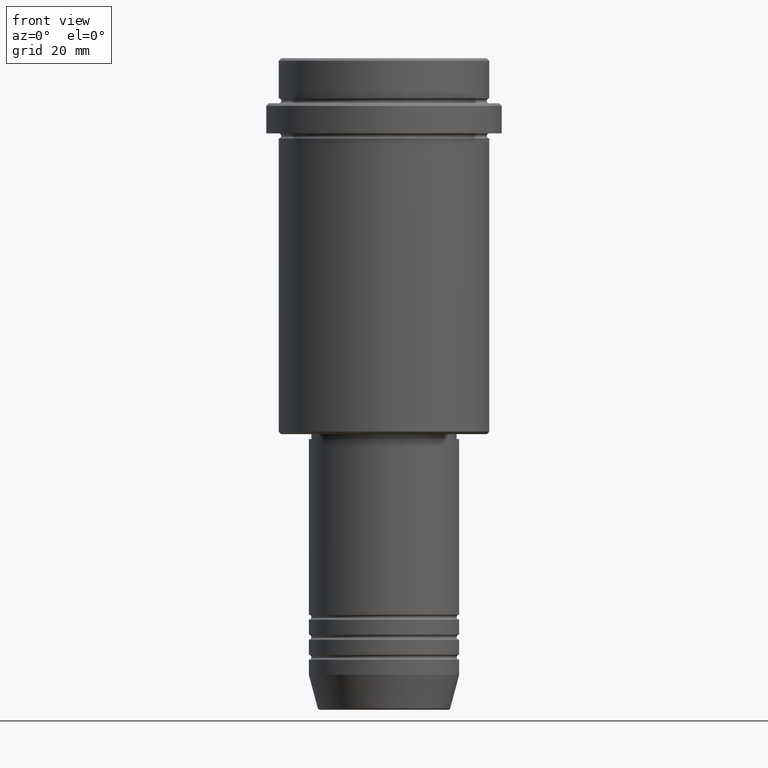
[diagram: clean part render]
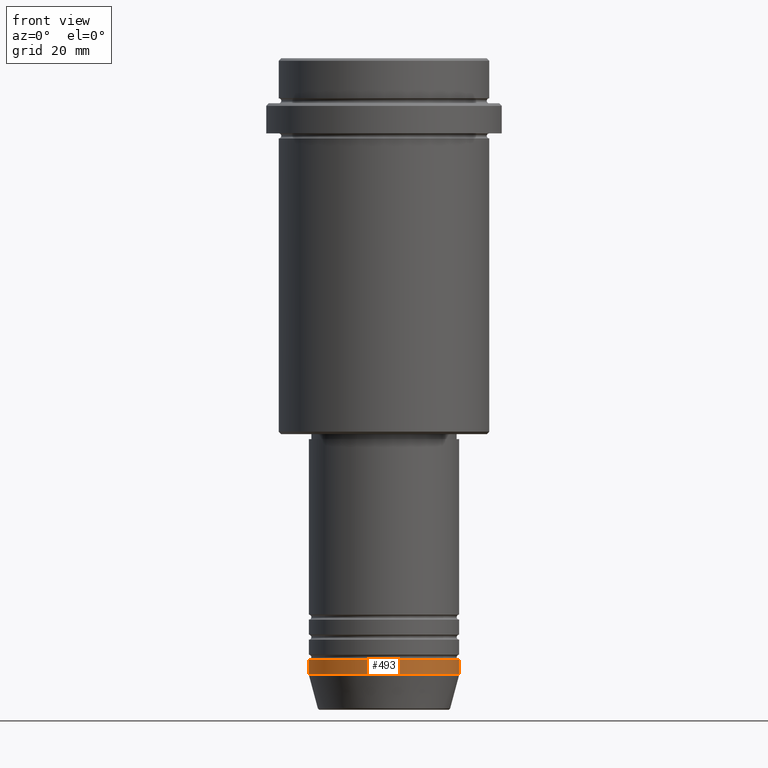
[diagram: same view with one face highlighted and labeled with its STEP entity id]
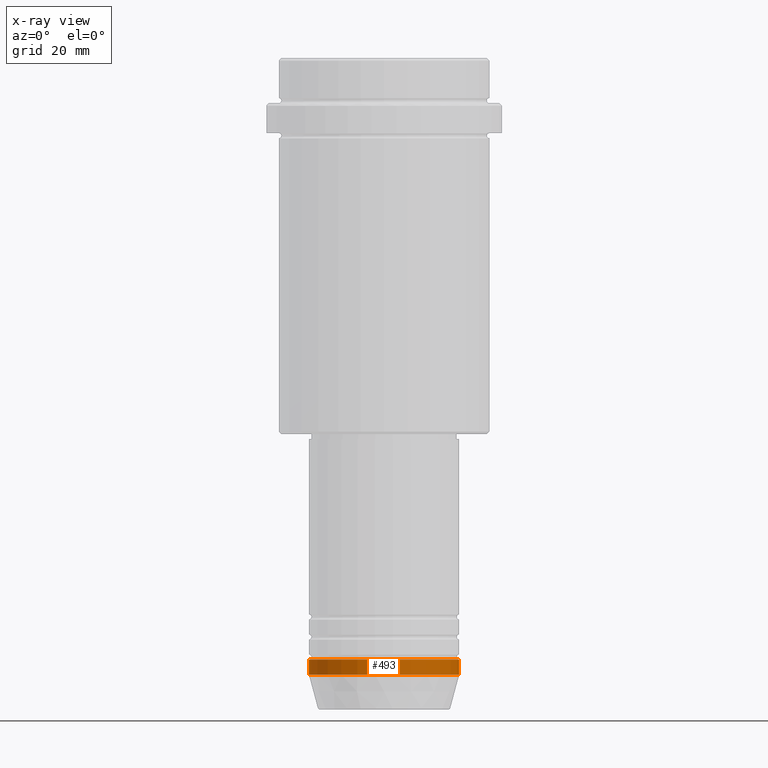
[diagram: x-ray of the same camera — body ghosted, the highlighted face saturated]
A machine part, front view. The second image highlights one B-rep face of the part: STEP entity #493.
The next image is the same camera in x-ray: the body ghosted, the highlighted face saturated — about 0% of this face is hidden behind the body in this view.
In plain terms, the highlighted cylindrical surface (partial cylindrical patch) has radius 15 mm, axis along (-0, -0, 1).
Its self-contained STEP definition (entity closure, byte-faithful):
#49 = DIRECTION ( 'NONE',  ( -0.000000000000000000, -0.000000000000000000, 1.000000000000000000 ) ) ;
#56 = AXIS2_PLACEMENT_3D ( 'NONE', #1176, #412, #623 ) ;
#90 = CARTESIAN_POINT ( 'NONE',  ( 0.000000000000000000, 0.000000000000000000, -123.0000000000000000 ) ) ;
#114 = VERTEX_POINT ( 'NONE', #861 ) ;
#153 = LINE ( 'NONE', #504, #1387 ) ;
#170 = DIRECTION ( 'NONE',  ( 1.000000000000000000, 0.000000000000000000, 0.000000000000000000 ) ) ;
#187 = CARTESIAN_POINT ( 'NONE',  ( 0.000000000000000000, 0.000000000000000000, -120.0000000000000000 ) ) ;
#192 = CARTESIAN_POINT ( 'NONE',  ( -15.00000000000000000, 1.836970198721029589E-15, 0.000000000000000000 ) ) ;
#193 = FACE_OUTER_BOUND ( 'NONE', #503, .T. ) ;
#309 = ORIENTED_EDGE ( 'NONE', *, *, #461, .T. ) ;
#353 = CARTESIAN_POINT ( 'NONE',  ( -15.00000000000000000, 1.836970198721029589E-15, -123.0000000000000000 ) ) ;
#360 = AXIS2_PLACEMENT_3D ( 'NONE', #187, #512, #170 ) ;
#412 = DIRECTION ( 'NONE',  ( -0.000000000000000000, -0.000000000000000000, 1.000000000000000000 ) ) ;
#461 = EDGE_CURVE ( 'NONE', #1081, #718, #849, .T. ) ;
#492 = ORIENTED_EDGE ( 'NONE', *, *, #839, .F. ) ;
#493 = ADVANCED_FACE ( 'NONE', ( #193 ), #1278, .T. ) ;
#503 = EDGE_LOOP ( 'NONE', ( #492, #309, #769, #590 ) ) ;
#504 = CARTESIAN_POINT ( 'NONE',  ( 15.00000000000000000, 0.000000000000000000, 0.000000000000000000 ) ) ;
#512 = DIRECTION ( 'NONE',  ( -0.000000000000000000, -0.000000000000000000, 1.000000000000000000 ) ) ;
#528 = DIRECTION ( 'NONE',  ( 1.000000000000000000, 0.000000000000000000, 0.000000000000000000 ) ) ;
#590 = ORIENTED_EDGE ( 'NONE', *, *, #793, .F. ) ;
#611 = LINE ( 'NONE', #192, #1318 ) ;
#616 = AXIS2_PLACEMENT_3D ( 'NONE', #90, #761, #528 ) ;
#623 = DIRECTION ( 'NONE',  ( 1.000000000000000000, 0.000000000000000000, 0.000000000000000000 ) ) ;
#718 = VERTEX_POINT ( 'NONE', #1091 ) ;
#761 = DIRECTION ( 'NONE',  ( -0.000000000000000000, -0.000000000000000000, 1.000000000000000000 ) ) ;
#769 = ORIENTED_EDGE ( 'NONE', *, *, #1189, .T. ) ;
#793 = EDGE_CURVE ( 'NONE', #114, #919, #1317, .T. ) ;
#839 = EDGE_CURVE ( 'NONE', #1081, #114, #611, .T. ) ;
#849 = CIRCLE ( 'NONE', #616, 15.00000000000000000 ) ;
#861 = CARTESIAN_POINT ( 'NONE',  ( -15.00000000000000000, 1.836970198721029589E-15, -120.0000000000000000 ) ) ;
#919 = VERTEX_POINT ( 'NONE', #1409 ) ;
#1045 = DIRECTION ( 'NONE',  ( -0.000000000000000000, -0.000000000000000000, 1.000000000000000000 ) ) ;
#1081 = VERTEX_POINT ( 'NONE', #353 ) ;
#1091 = CARTESIAN_POINT ( 'NONE',  ( 15.00000000000000000, 0.000000000000000000, -123.0000000000000000 ) ) ;
#1176 = CARTESIAN_POINT ( 'NONE',  ( 0.000000000000000000, 0.000000000000000000, 0.000000000000000000 ) ) ;
#1189 = EDGE_CURVE ( 'NONE', #718, #919, #153, .T. ) ;
#1278 = CYLINDRICAL_SURFACE ( 'NONE', #56, 15.00000000000000000 ) ;
#1317 = CIRCLE ( 'NONE', #360, 15.00000000000000000 ) ;
#1318 = VECTOR ( 'NONE', #1045, 1000.000000000000000 ) ;
#1387 = VECTOR ( 'NONE', #49, 1000.000000000000000 ) ;
#1409 = CARTESIAN_POINT ( 'NONE',  ( 15.00000000000000000, 0.000000000000000000, -120.0000000000000000 ) ) ;